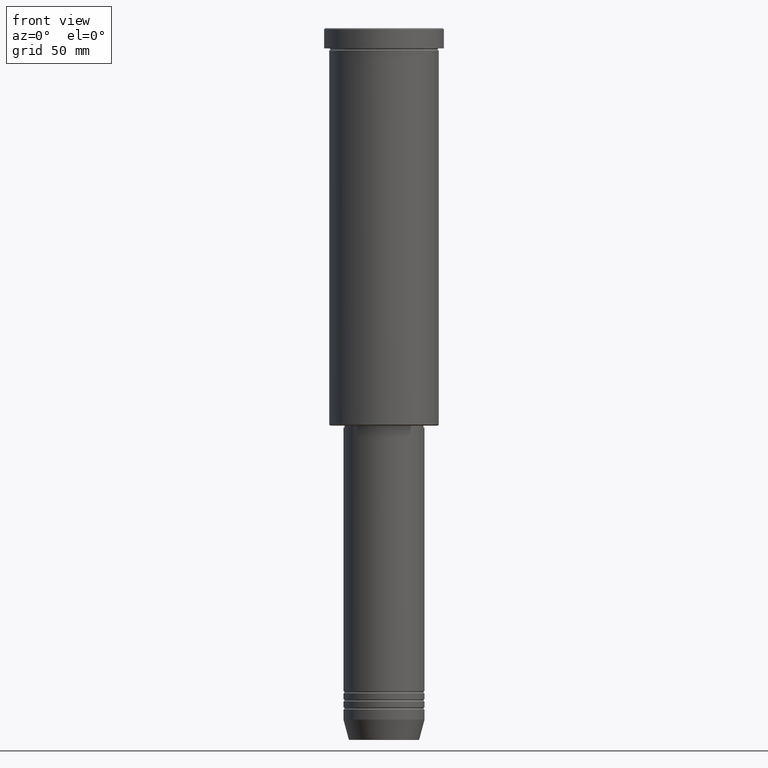
[diagram: clean part render]
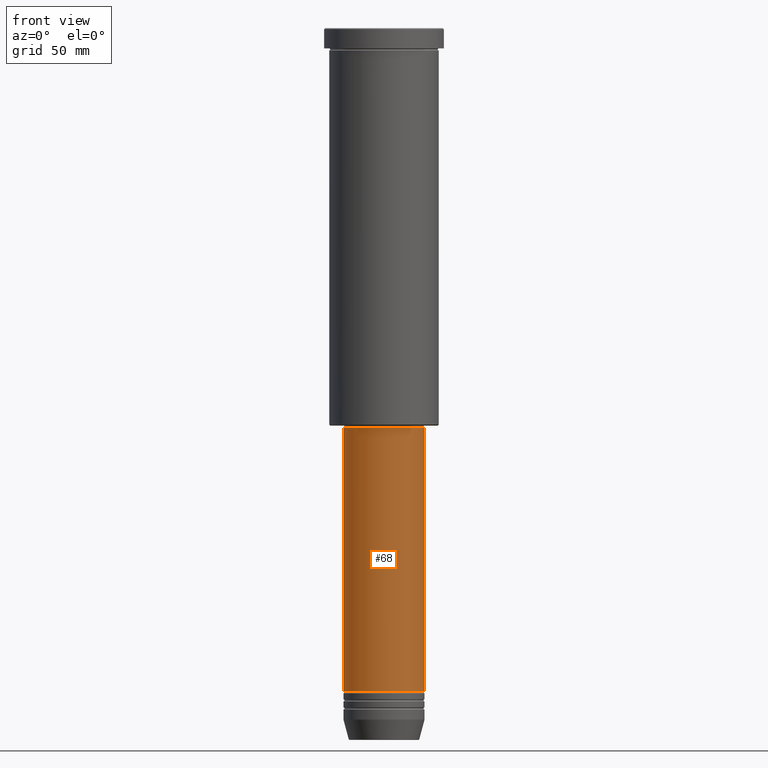
[diagram: same view with one face highlighted and labeled with its STEP entity id]
A machine part, front view. The second image highlights one B-rep face of the part: STEP entity #68.
In plain terms, the highlighted cylindrical surface (partial cylindrical patch) has radius 20 mm, axis along (-0, -0, 1).
Its self-contained STEP definition (entity closure, byte-faithful):
#3 = DIRECTION ( 'NONE',  ( -0.000000000000000000, -0.000000000000000000, 1.000000000000000000 ) ) ;
#20 = DIRECTION ( 'NONE',  ( -0.000000000000000000, -0.000000000000000000, 1.000000000000000000 ) ) ;
#68 = ADVANCED_FACE ( 'NONE', ( #657 ), #73, .T. ) ;
#73 = CYLINDRICAL_SURFACE ( 'NONE', #567, 19.99999999999999645 ) ;
#80 = AXIS2_PLACEMENT_3D ( 'NONE', #303, #1143, #236 ) ;
#122 = DIRECTION ( 'NONE',  ( -0.000000000000000000, -0.000000000000000000, 1.000000000000000000 ) ) ;
#131 = DIRECTION ( 'NONE',  ( 1.000000000000000000, 0.000000000000000000, 0.000000000000000000 ) ) ;
#139 = ORIENTED_EDGE ( 'NONE', *, *, #590, .T. ) ;
#181 = CARTESIAN_POINT ( 'NONE',  ( 19.99999999999999645, 0.000000000000000000, -196.9999999999999432 ) ) ;
#236 = DIRECTION ( 'NONE',  ( 1.000000000000000000, 0.000000000000000000, 0.000000000000000000 ) ) ;
#262 = VERTEX_POINT ( 'NONE', #1033 ) ;
#289 = CARTESIAN_POINT ( 'NONE',  ( -19.99999999999999645, 2.449293598294706119E-15, 0.000000000000000000 ) ) ;
#296 = LINE ( 'NONE', #473, #691 ) ;
#303 = CARTESIAN_POINT ( 'NONE',  ( 0.000000000000000000, 0.000000000000000000, -196.9999999999999432 ) ) ;
#353 = ORIENTED_EDGE ( 'NONE', *, *, #636, .F. ) ;
#440 = DIRECTION ( 'NONE',  ( -0.000000000000000000, -0.000000000000000000, 1.000000000000000000 ) ) ;
#473 = CARTESIAN_POINT ( 'NONE',  ( 19.99999999999999645, 0.000000000000000000, 0.000000000000000000 ) ) ;
#503 = VERTEX_POINT ( 'NONE', #927 ) ;
#526 = DIRECTION ( 'NONE',  ( 1.000000000000000000, 0.000000000000000000, 0.000000000000000000 ) ) ;
#567 = AXIS2_PLACEMENT_3D ( 'NONE', #1027, #440, #526 ) ;
#590 = EDGE_CURVE ( 'NONE', #503, #1052, #610, .T. ) ;
#610 = CIRCLE ( 'NONE', #1116, 20.00000000000000000 ) ;
#636 = EDGE_CURVE ( 'NONE', #262, #984, #992, .T. ) ;
#657 = FACE_OUTER_BOUND ( 'NONE', #789, .T. ) ;
#681 = CARTESIAN_POINT ( 'NONE',  ( 20.00000000000000000, 0.000000000000000000, -326.9999999999999432 ) ) ;
#691 = VECTOR ( 'NONE', #3, 1000.000000000000000 ) ;
#789 = EDGE_LOOP ( 'NONE', ( #1167, #139, #1140, #353 ) ) ;
#870 = EDGE_CURVE ( 'NONE', #1052, #984, #296, .T. ) ;
#927 = CARTESIAN_POINT ( 'NONE',  ( -20.00000000000000000, 2.449293598294706513E-15, -326.9999999999999432 ) ) ;
#937 = VECTOR ( 'NONE', #20, 1000.000000000000000 ) ;
#963 = EDGE_CURVE ( 'NONE', #503, #262, #1018, .T. ) ;
#984 = VERTEX_POINT ( 'NONE', #181 ) ;
#992 = CIRCLE ( 'NONE', #80, 19.99999999999999645 ) ;
#1018 = LINE ( 'NONE', #289, #937 ) ;
#1027 = CARTESIAN_POINT ( 'NONE',  ( 0.000000000000000000, 0.000000000000000000, 0.000000000000000000 ) ) ;
#1033 = CARTESIAN_POINT ( 'NONE',  ( -19.99999999999999645, 2.449293598294706119E-15, -196.9999999999999432 ) ) ;
#1052 = VERTEX_POINT ( 'NONE', #681 ) ;
#1116 = AXIS2_PLACEMENT_3D ( 'NONE', #1148, #122, #131 ) ;
#1140 = ORIENTED_EDGE ( 'NONE', *, *, #870, .T. ) ;
#1143 = DIRECTION ( 'NONE',  ( -0.000000000000000000, -0.000000000000000000, 1.000000000000000000 ) ) ;
#1148 = CARTESIAN_POINT ( 'NONE',  ( 0.000000000000000000, 0.000000000000000000, -326.9999999999999432 ) ) ;
#1167 = ORIENTED_EDGE ( 'NONE', *, *, #963, .F. ) ;